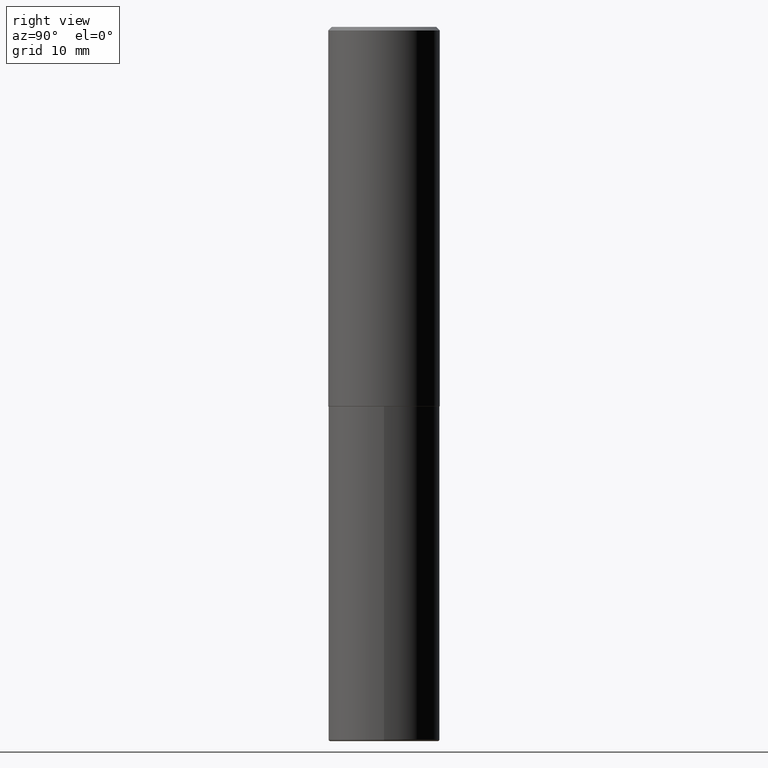
[diagram: clean part render]
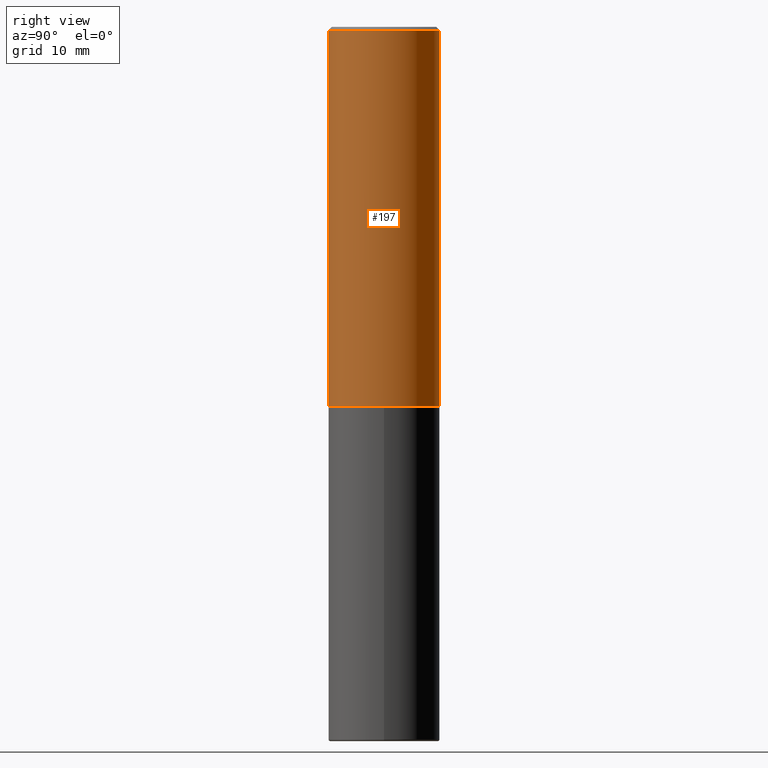
[diagram: same view with one face highlighted and labeled with its STEP entity id]
A machine part, right view. The second image highlights one B-rep face of the part: STEP entity #197.
In plain terms, the highlighted cylindrical surface (partial cylindrical patch) has radius 7.9375 mm, axis along (-0, 0, 1).
Its self-contained STEP definition (entity closure, byte-faithful):
#26 = DIRECTION ( 'NONE',  ( -6.982962677686265922E-15, -1.000000000000000000, 3.496765431890253764E-15 ) ) ;
#49 = VECTOR ( 'NONE', #298, 39.37007874015748143 ) ;
#65 = AXIS2_PLACEMENT_3D ( 'NONE', #208, #136, #210 ) ;
#72 = ORIENTED_EDGE ( 'NONE', *, *, #237, .F. ) ;
#76 = CIRCLE ( 'NONE', #243, 0.3125000000000002776 ) ;
#83 = DIRECTION ( 'NONE',  ( -6.982962677686265133E-15, -1.000000000000000000, 3.492364022149836358E-15 ) ) ;
#99 = VERTEX_POINT ( 'NONE', #247 ) ;
#104 = VERTEX_POINT ( 'NONE', #312 ) ;
#105 = CARTESIAN_POINT ( 'NONE',  ( 2.220446049250340297E-15, 0.3124999999999928391, -2.124000000000000554 ) ) ;
#130 = AXIS2_PLACEMENT_3D ( 'NONE', #333, #376, #83 ) ;
#131 = VECTOR ( 'NONE', #375, 39.37007874015748143 ) ;
#136 = DIRECTION ( 'NONE',  ( -2.444852431726452894E-29, 3.492364022149836358E-15, 1.000000000000000000 ) ) ;
#147 = VERTEX_POINT ( 'NONE', #230 ) ;
#177 = DIRECTION ( 'NONE',  ( -2.444852431726452894E-29, 3.492364022149836358E-15, 1.000000000000000000 ) ) ;
#179 = ORIENTED_EDGE ( 'NONE', *, *, #328, .F. ) ;
#197 = ADVANCED_FACE ( 'NONE', ( #367 ), #372, .T. ) ;
#208 = CARTESIAN_POINT ( 'NONE',  ( 4.889704863452922148E-31, -6.984728044299695791E-17, -0.02000000000000006981 ) ) ;
#210 = DIRECTION ( 'NONE',  ( -6.982962677686265133E-15, -1.000000000000000000, 3.496765431890256920E-15 ) ) ;
#230 = CARTESIAN_POINT ( 'NONE',  ( 2.182175836776958741E-15, 0.3124999999999999445, -0.02000000000000116268 ) ) ;
#234 = LINE ( 'NONE', #370, #49 ) ;
#237 = EDGE_CURVE ( 'NONE', #104, #147, #374, .T. ) ;
#239 = CARTESIAN_POINT ( 'NONE',  ( 5.192866564986985411E-29, -7.417781183046251262E-15, -2.123999999999999666 ) ) ;
#242 = ORIENTED_EDGE ( 'NONE', *, *, #315, .T. ) ;
#243 = AXIS2_PLACEMENT_3D ( 'NONE', #239, #177, #26 ) ;
#247 = CARTESIAN_POINT ( 'NONE',  ( -2.182175836776908254E-15, -0.3125000000000077161, -2.123999999999998334 ) ) ;
#288 = EDGE_LOOP ( 'NONE', ( #303, #242, #72, #179 ) ) ;
#298 = DIRECTION ( 'NONE',  ( -2.444852431726452614E-29, 3.492364022149836358E-15, 1.000000000000000000 ) ) ;
#303 = ORIENTED_EDGE ( 'NONE', *, *, #379, .T. ) ;
#312 = CARTESIAN_POINT ( 'NONE',  ( -2.143905624303602824E-15, -0.3125000000000000555, -0.01999999999999897693 ) ) ;
#315 = EDGE_CURVE ( 'NONE', #348, #147, #234, .T. ) ;
#328 = EDGE_CURVE ( 'NONE', #99, #104, #406, .T. ) ;
#333 = CARTESIAN_POINT ( 'NONE',  ( 0.000000000000000000, 0.000000000000000000, 0.000000000000000000 ) ) ;
#341 = CARTESIAN_POINT ( 'NONE',  ( -2.182175836776959136E-15, -0.3125000000000001665, 1.091363756921824478E-15 ) ) ;
#348 = VERTEX_POINT ( 'NONE', #105 ) ;
#367 = FACE_OUTER_BOUND ( 'NONE', #288, .T. ) ;
#370 = CARTESIAN_POINT ( 'NONE',  ( 2.220446049250313475E-15, 0.3125000000000001665, -1.091363756921824478E-15 ) ) ;
#372 = CYLINDRICAL_SURFACE ( 'NONE', #130, 0.3125000000000001665 ) ;
#374 = CIRCLE ( 'NONE', #65, 0.3125000000000000000 ) ;
#375 = DIRECTION ( 'NONE',  ( -2.444852431726452614E-29, 3.492364022149836358E-15, 1.000000000000000000 ) ) ;
#376 = DIRECTION ( 'NONE',  ( -2.444852431726452894E-29, 3.492364022149836358E-15, 1.000000000000000000 ) ) ;
#379 = EDGE_CURVE ( 'NONE', #99, #348, #76, .T. ) ;
#406 = LINE ( 'NONE', #341, #131 ) ;